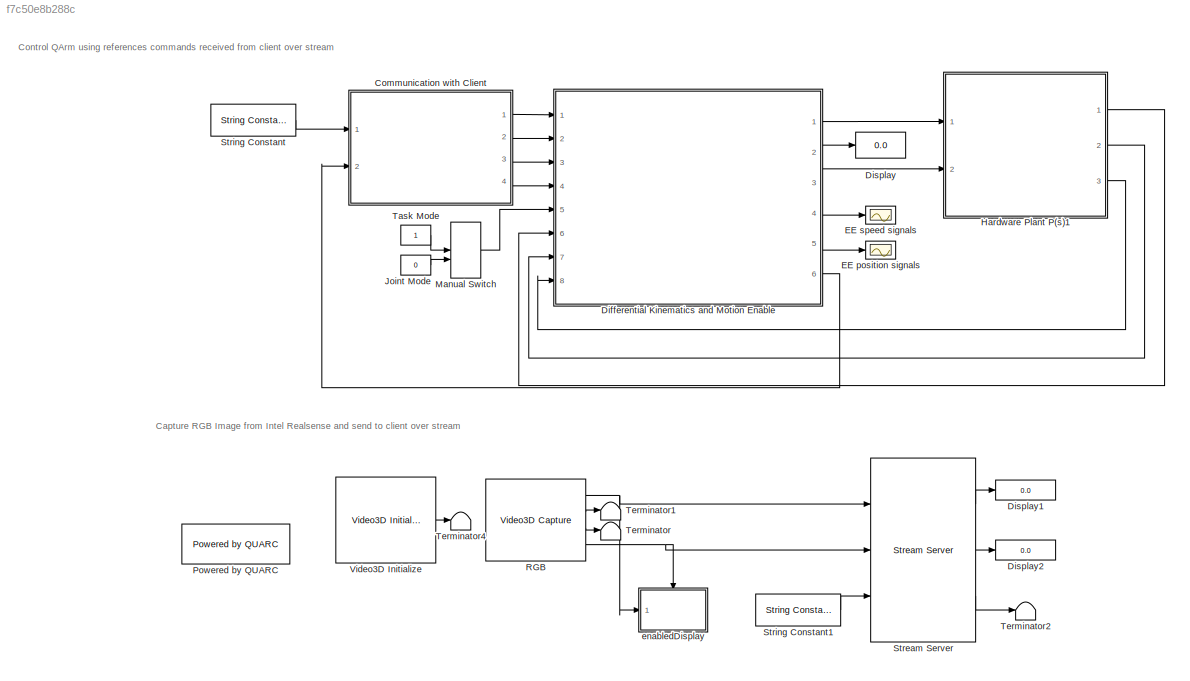
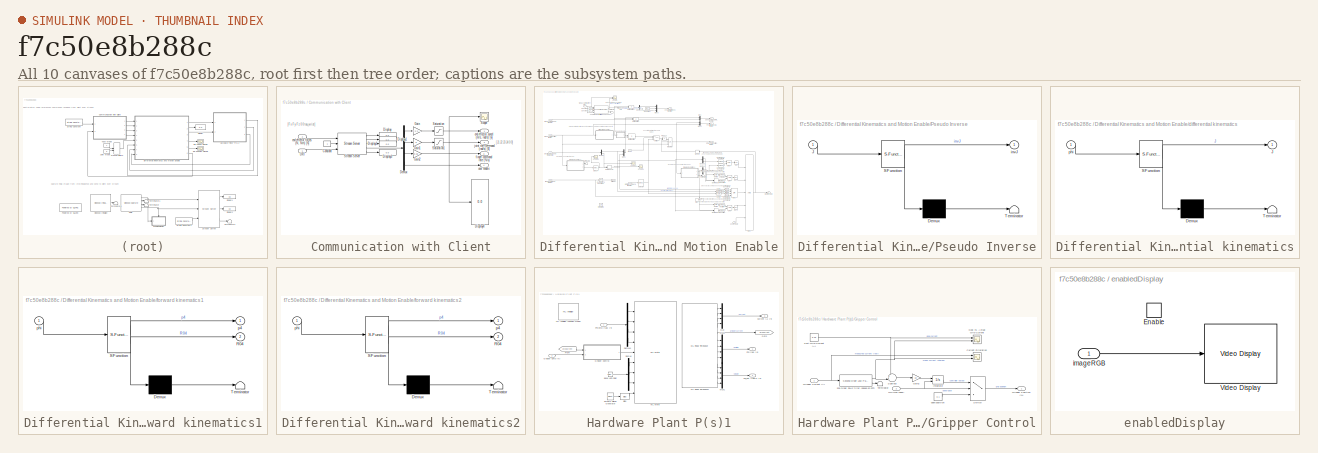
[diagram: thumbnail index - all 10 canvases of the model, root first then tree order]
MODEL slx_f7c50e8b288c
KIND model
CONFIG AbsTol = auto
CONFIG EnableMultiTasking = on
CONFIG FixedStep = 1/500
CONFIG MaxStep = auto
CONFIG MinStep = auto
CONFIG RelTol = 1e-3
CONFIG SampleTimeConstraint = Unconstrained
CONFIG Solver = ode4
CONFIG SolverName = ode4
CONFIG StartTime = 0.0
CONFIG StopTime = inf
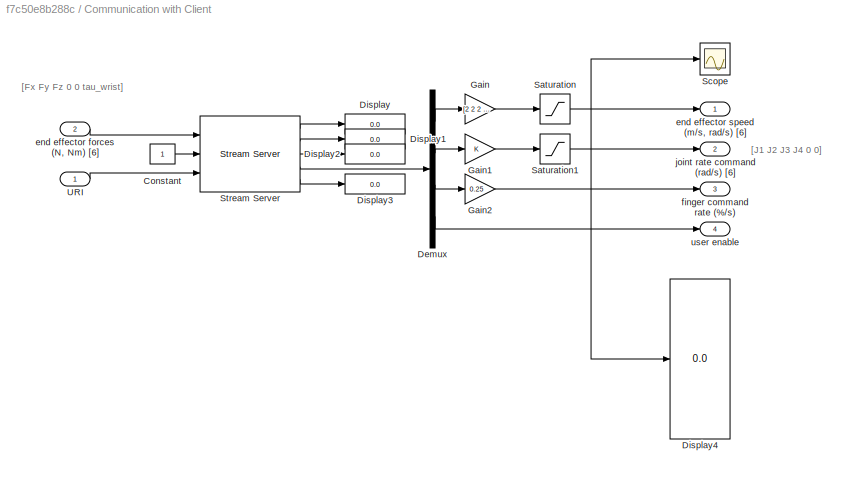
BLOCK [SubSystem] Communication with Client
  Ports = [2, 4]
  RequestExecContextInheritance = off
BLOCK [Constant] Communication with Client/Constant
BLOCK [Demux] Communication with Client/Demux
  Outputs = [6 6 1 1]
  Ports = [1, 4]
BLOCK [Display] Communication with Client/Display
  Decimation = 1
  Ports = [1]
BLOCK [Display] Communication with Client/Display1
  Decimation = 1
  Ports = [1]
BLOCK [Display] Communication with Client/Display2
  Decimation = 1
  Ports = [1]
BLOCK [Display] Communication with Client/Display3
  Decimation = 1
  Ports = [1]
BLOCK [Display] Communication with Client/Display4
  Decimation = 1
  Ports = [1]
BLOCK [Gain] Communication with Client/Gain
  Gain = [2 2 2 1 1 0.5]
BLOCK [Gain] Communication with Client/Gain1
BLOCK [Gain] Communication with Client/Gain2
  Gain = 0.25
BLOCK [Saturate] Communication with Client/Saturation
  LowerLimit = -[0.5 0.5 0.5 1 1 1]
  UpperLimit = [0.5 0.5 0.5 1 1 1]
BLOCK [Saturate] Communication with Client/Saturation1
  LowerLimit = -pi*[1 1 1 1 1 1]/6
  UpperLimit = pi*[1 1 1 1 1 1]/6
BLOCK [Scope] Communication with Client/Scope
  Floating = off
  NumInputPorts = 1
  Ports = [1]
  ScopeSpecificationString = Simulink.scopes.TimeScopeBlockCfg('CurrentConfiguration', extmgr.ConfigurationSet(extmgr.Configuration('Core','General UI',true),extmgr.Configuration('Core','Source UI',true),extmgr.Configuration('Sources','WiredSimulink',true,'DataLoggingVariableName','ScopeData1'),extmgr.Configuration('Visuals','Time Domain',true),extmgr.Configuration('Tools','Plot Navigation',true),extmgr.Configuration('Tools',...<+40ch>
BLOCK [Reference] Communication with Client/Stream Server  REF=quarc_library/Communications/Basic/Stream Server
  Ports = [3, 5]
  SourceBlock = quarc_library/Communications/Basic/Stream Server
  SourceProductName = QUARC Targets
  SourceType = Stream Server
BLOCK [Inport] Communication with Client/URI
BLOCK [Inport] Communication with Client/end effector forces (N, Nm) [6]
  Port = 2
BLOCK [Outport] Communication with Client/end effector speed (m//s, rad//s) [6]
BLOCK [Outport] Communication with Client/finger command rate (%//s)
  Port = 3
BLOCK [Outport] Communication with Client/joint rate command (rad//s) [6]
  Port = 2
BLOCK [Outport] Communication with Client/user enable
  Port = 4
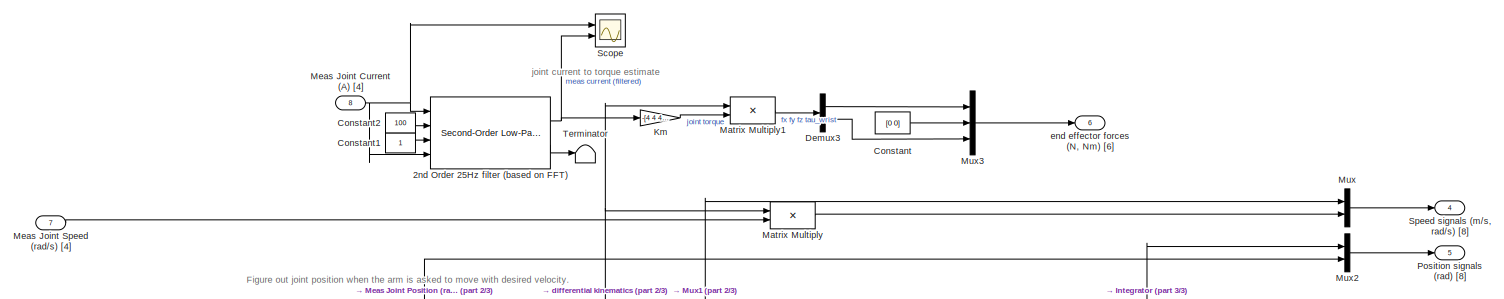
[diagram: Differential Kinematics and Motion Enable - part 1/3, full width, top band]
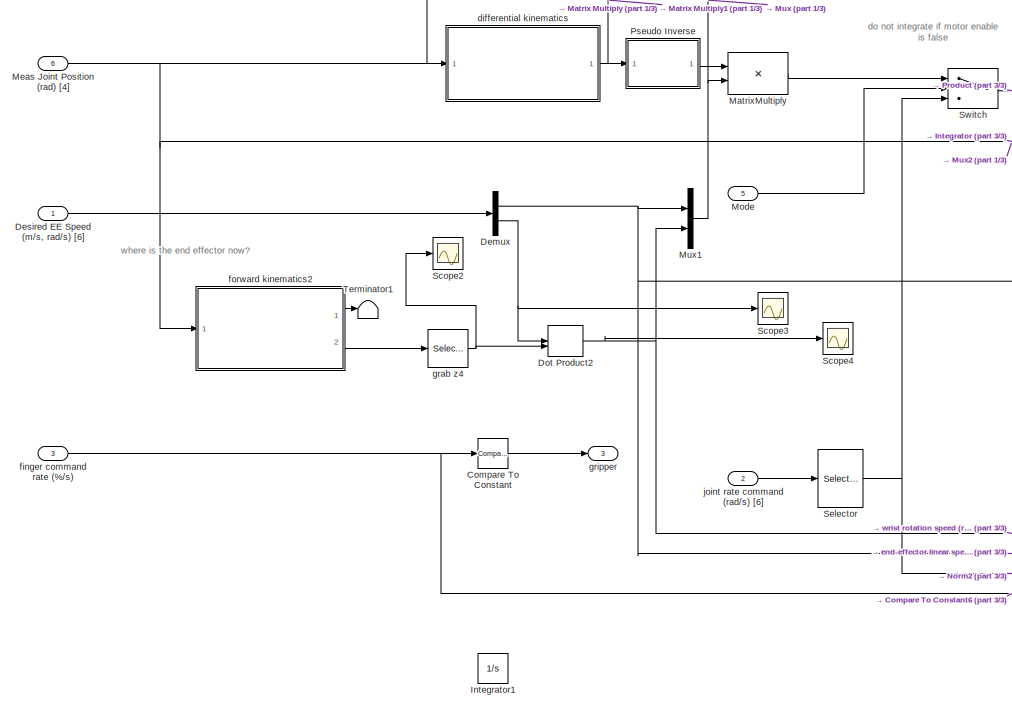
[diagram: Differential Kinematics and Motion Enable - part 2/3, middle left region]
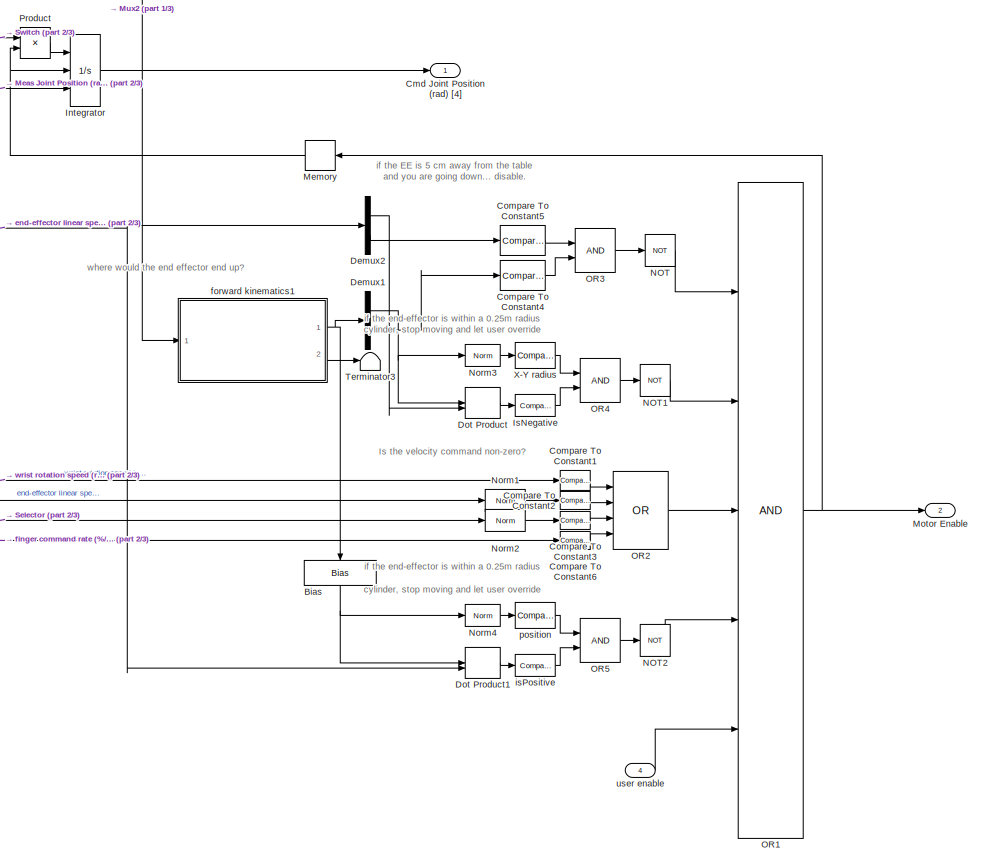
[diagram: Differential Kinematics and Motion Enable - part 3/3, middle right region]
BLOCK [SubSystem] Differential Kinematics and Motion Enable
  Ports = [8, 6]
  RequestExecContextInheritance = off
BLOCK [Reference] Differential Kinematics and Motion Enable/2nd Order 25Hz filter (based on FFT)  REF=quarc_library/Continuous/Second-Order
Low-Pass Filter
  Ports = [4, 2]
  SourceBlock = quarc_library/Continuous/Second-Order\nLow-Pass Filter
  SourceProductName = QUARC Targets
  SourceType = Second-Order Low-Pass Filter
BLOCK [Bias] Differential Kinematics and Motion Enable/Bias
  Bias = [0 0 -0.14]
  SaturateOnIntegerOverflow = off
BLOCK [Outport] Differential Kinematics and Motion Enable/Cmd Joint Position (rad) [4]
  VectorParamsAs1DForOutWhenUnconnected = off
BLOCK [Reference] Differential Kinematics and Motion Enable/Compare To Constant  REF=simulink/Logic and Bit
Operations/Compare
To Constant
  Ports = [1, 1]
  SourceBlock = simulink/Logic and Bit\nOperations/Compare\nTo Constant
  SourceProductBaseCode = SL
  SourceType = Compare To Constant
BLOCK [Reference] Differential Kinematics and Motion Enable/Compare To Constant1  REF=simulink/Logic and Bit
Operations/Compare
To Constant
  Ports = [1, 1]
  SourceBlock = simulink/Logic and Bit\nOperations/Compare\nTo Constant
  SourceProductBaseCode = SL
  SourceType = Compare To Constant
BLOCK [Reference] Differential Kinematics and Motion Enable/Compare To Constant2  REF=simulink/Logic and Bit
Operations/Compare
To Constant
  Ports = [1, 1]
  SourceBlock = simulink/Logic and Bit\nOperations/Compare\nTo Constant
  SourceProductBaseCode = SL
  SourceType = Compare To Constant
BLOCK [Reference] Differential Kinematics and Motion Enable/Compare To Constant3  REF=simulink/Logic and Bit
Operations/Compare
To Constant
  Ports = [1, 1]
  SourceBlock = simulink/Logic and Bit\nOperations/Compare\nTo Constant
  SourceProductBaseCode = SL
  SourceType = Compare To Constant
BLOCK [Reference] Differential Kinematics and Motion Enable/Compare To Constant4  REF=simulink/Logic and Bit
Operations/Compare
To Constant
  Ports = [1, 1]
  SourceBlock = simulink/Logic and Bit\nOperations/Compare\nTo Constant
  SourceProductBaseCode = SL
  SourceType = Compare To Constant
BLOCK [Reference] Differential Kinematics and Motion Enable/Compare To Constant5  REF=simulink/Logic and Bit
Operations/Compare
To Constant
  Ports = [1, 1]
  SourceBlock = simulink/Logic and Bit\nOperations/Compare\nTo Constant
  SourceProductBaseCode = SL
  SourceType = Compare To Constant
BLOCK [Reference] Differential Kinematics and Motion Enable/Compare To Constant6  REF=simulink/Logic and Bit
Operations/Compare
To Constant
  Ports = [1, 1]
  SourceBlock = simulink/Logic and Bit\nOperations/Compare\nTo Constant
  SourceProductBaseCode = SL
  SourceType = Compare To Constant
BLOCK [Constant] Differential Kinematics and Motion Enable/Constant
  Value = [0 0]
BLOCK [Constant] Differential Kinematics and Motion Enable/Constant1
BLOCK [Constant] Differential Kinematics and Motion Enable/Constant2
  Value = 100
BLOCK [Demux] Differential Kinematics and Motion Enable/Demux
  Outputs = [3 3]
  Ports = [1, 2]
BLOCK [Demux] Differential Kinematics and Motion Enable/Demux1
  Outputs = [2 1]
  Ports = [1, 2]
BLOCK [Demux] Differential Kinematics and Motion Enable/Demux2
  Outputs = [2 1]
  Ports = [1, 2]
BLOCK [Demux] Differential Kinematics and Motion Enable/Demux3
  Outputs = [3 1]
  Ports = [1, 2]
BLOCK [Inport] Differential Kinematics and Motion Enable/Desired EE Speed (m//s, rad//s) [6]
  PortDimensions = 6
BLOCK [DotProduct] Differential Kinematics and Motion Enable/Dot Product
  OutDataTypeStr = Inherit: Inherit via internal rule
BLOCK [DotProduct] Differential Kinematics and Motion Enable/Dot Product1
  OutDataTypeStr = Inherit: Inherit via internal rule
BLOCK [DotProduct] Differential Kinematics and Motion Enable/Dot Product2
  OutDataTypeStr = Inherit: Inherit via internal rule
BLOCK [Integrator] Differential Kinematics and Motion Enable/Integrator
  ExternalReset = falling
  InitialConditionSource = external
  Ports = [3, 1]
BLOCK [Integrator] Differential Kinematics and Motion Enable/Integrator1
  Commented = on
  InitialCondition = 0.1
  LimitOutput = on
  LowerSaturationLimit = 0.1
  Ports = [1, 1]
  UpperSaturationLimit = 0.9
BLOCK [Reference] Differential Kinematics and Motion Enable/IsNegative  REF=simulink/Logic and Bit
Operations/Compare
To Zero
  Ports = [1, 1]
  SourceBlock = simulink/Logic and Bit\nOperations/Compare\nTo Zero
  SourceProductBaseCode = SL
  SourceType = Compare To Zero
BLOCK [Gain] Differential Kinematics and Motion Enable/Km
  Gain = -[4 4 4 4]
BLOCK [Product] Differential Kinematics and Motion Enable/Matrix Multiply
  Multiplication = Matrix(*)
  Ports = [2, 1]
BLOCK [Product] Differential Kinematics and Motion Enable/Matrix Multiply1
  Multiplication = Matrix(*)
  Ports = [2, 1]
BLOCK [Product] Differential Kinematics and Motion Enable/MatrixMultiply
  Multiplication = Matrix(*)
  Ports = [2, 1]
BLOCK [Inport] Differential Kinematics and Motion Enable/Meas Joint Current (A) [4]
  Port = 8
BLOCK [Inport] Differential Kinematics and Motion Enable/Meas Joint Position (rad) [4]
  Port = 6
  PortDimensions = 4
BLOCK [Inport] Differential Kinematics and Motion Enable/Meas Joint Speed (rad//s) [4]
  Port = 7
BLOCK [Memory] Differential Kinematics and Motion Enable/Memory
BLOCK [Inport] Differential Kinematics and Motion Enable/Mode
  Port = 5
BLOCK [Outport] Differential Kinematics and Motion Enable/Motor Enable
  Port = 2
  VectorParamsAs1DForOutWhenUnconnected = off
BLOCK [Mux] Differential Kinematics and Motion Enable/Mux
  DisplayOption = bar
  Inputs = 2
  Ports = [2, 1]
BLOCK [Mux] Differential Kinematics and Motion Enable/Mux1
  DisplayOption = bar
  Inputs = 2
  Ports = [2, 1]
BLOCK [Mux] Differential Kinematics and Motion Enable/Mux2
  DisplayOption = bar
  Inputs = 2
  Ports = [2, 1]
BLOCK [Mux] Differential Kinematics and Motion Enable/Mux3
  DisplayOption = bar
  Inputs = 3
  Ports = [3, 1]
BLOCK [Logic] Differential Kinematics and Motion Enable/NOT
  AllPortsSameDT = off
  IconShape = distinctive
  Operator = NOT
  OutDataTypeStr = boolean
  Ports = [1, 1]
BLOCK [Logic] Differential Kinematics and Motion Enable/NOT1
  AllPortsSameDT = off
  IconShape = distinctive
  Operator = NOT
  OutDataTypeStr = boolean
  Ports = [1, 1]
BLOCK [Logic] Differential Kinematics and Motion Enable/NOT2
  AllPortsSameDT = off
  IconShape = distinctive
  Operator = NOT
  OutDataTypeStr = boolean
  Ports = [1, 1]
BLOCK [Reference] Differential Kinematics and Motion Enable/Norm1  REF=quarc_library/Math Operations/Vectors/Norm
  Ports = [1, 1]
  SourceBlock = quarc_library/Math Operations/Vectors/Norm
  SourceProductName = QUARC Targets
  SourceType = Norm
BLOCK [Reference] Differential Kinematics and Motion Enable/Norm2  REF=quarc_library/Math Operations/Vectors/Norm
  Ports = [1, 1]
  SourceBlock = quarc_library/Math Operations/Vectors/Norm
  SourceProductName = QUARC Targets
  SourceType = Norm
BLOCK [Reference] Differential Kinematics and Motion Enable/Norm3  REF=quarc_library/Math Operations/Vectors/Norm
  Ports = [1, 1]
  SourceBlock = quarc_library/Math Operations/Vectors/Norm
  SourceProductName = QUARC Targets
  SourceType = Norm
BLOCK [Reference] Differential Kinematics and Motion Enable/Norm4  REF=quarc_library/Math Operations/Vectors/Norm
  Ports = [1, 1]
  SourceBlock = quarc_library/Math Operations/Vectors/Norm
  SourceProductName = QUARC Targets
  SourceType = Norm
BLOCK [Logic] Differential Kinematics and Motion Enable/OR1
  AllPortsSameDT = off
  IconShape = distinctive
  Inputs = 5
  OutDataTypeStr = boolean
  Ports = [5, 1]
BLOCK [Logic] Differential Kinematics and Motion Enable/OR2
  AllPortsSameDT = off
  IconShape = distinctive
  Inputs = 4
  Operator = OR
  OutDataTypeStr = boolean
  Ports = [4, 1]
BLOCK [Logic] Differential Kinematics and Motion Enable/OR3
  AllPortsSameDT = off
  IconShape = distinctive
  OutDataTypeStr = boolean
  Ports = [2, 1]
BLOCK [Logic] Differential Kinematics and Motion Enable/OR4
  AllPortsSameDT = off
  IconShape = distinctive
  OutDataTypeStr = boolean
  Ports = [2, 1]
BLOCK [Logic] Differential Kinematics and Motion Enable/OR5
  AllPortsSameDT = off
  IconShape = distinctive
  OutDataTypeStr = boolean
  Ports = [2, 1]
BLOCK [Outport] Differential Kinematics and Motion Enable/Position signals (rad) [8]
  Port = 5
BLOCK [Product] Differential Kinematics and Motion Enable/Product
  Ports = [2, 1]
BLOCK [SubSystem] Differential Kinematics and Motion Enable/Pseudo Inverse
  ErrorFcn = Stateflow.Translate.translate
  PermitHierarchicalResolution = ExplicitOnly
  Ports = [1, 1]
  RequestExecContextInheritance = off
  SFBlockType = MATLAB Function
  TreatAsAtomicUnit = on
BLOCK [Demux] Differential Kinematics and Motion Enable/Pseudo Inverse/ Demux 
  Outputs = 1
  Ports = [1, 1]
BLOCK [S-Function] Differential Kinematics and Motion Enable/Pseudo Inverse/ SFunction 
  EnableBusSupport = on
  FunctionName = sf_sfun
  PortCounts = [1 2]
  Ports = [1, 2]
  SFcnIsStateOwnerBlock = off
  SFunctionDeploymentMode = off
  Tag = Stateflow S-Function QArm_TeleopServer 4
BLOCK [Terminator] Differential Kinematics and Motion Enable/Pseudo Inverse/ Terminator 
BLOCK [Inport] Differential Kinematics and Motion Enable/Pseudo Inverse/J
BLOCK [Outport] Differential Kinematics and Motion Enable/Pseudo Inverse/invJ
BLOCK [Scope] Differential Kinematics and Motion Enable/Scope
  Floating = off
  NumInputPorts = 2
  Ports = [2]
  ScopeSpecificationString = Simulink.scopes.TimeScopeBlockCfg('CurrentConfiguration', extmgr.ConfigurationSet(extmgr.Configuration('Core','General UI',true),extmgr.Configuration('Core','Source UI',true),extmgr.Configuration('Sources','WiredSimulink',true,'DataLoggingVariableName','ScopeData3'),extmgr.Configuration('Visuals','Time Domain',true,'SerializedDisplays',{struct('MinYLimReal','-0.875','MaxYLimReal','0.37462','YLabel...<+1607ch>
BLOCK [Scope] Differential Kinematics and Motion Enable/Scope2
  Floating = off
  NumInputPorts = 1
  Ports = [1]
  ScopeSpecificationString = Simulink.scopes.TimeScopeBlockCfg('CurrentConfiguration', extmgr.ConfigurationSet(extmgr.Configuration('Core','General UI',true),extmgr.Configuration('Core','Source UI',true),extmgr.Configuration('Sources','WiredSimulink',true,'DataLoggingVariableName','ScopeData1'),extmgr.Configuration('Visuals','Time Domain',true,'SerializedDisplays',{struct('MinYLimReal','-0.10112','MaxYLimReal','1.11549','YLab...<+1756ch>
BLOCK [Scope] Differential Kinematics and Motion Enable/Scope3
  Floating = off
  NumInputPorts = 1
  Ports = [1]
  ScopeSpecificationString = Simulink.scopes.TimeScopeBlockCfg('CurrentConfiguration', extmgr.ConfigurationSet(extmgr.Configuration('Core','General UI',true),extmgr.Configuration('Core','Source UI',true),extmgr.Configuration('Sources','WiredSimulink',true,'DataLoggingVariableName','ScopeData2'),extmgr.Configuration('Visuals','Time Domain',true,'SerializedDisplays',{struct('MinYLimReal','-2','MaxYLimReal','2','YLabelReal','','...<+1729ch>
BLOCK [Scope] Differential Kinematics and Motion Enable/Scope4
  Floating = off
  NumInputPorts = 1
  Ports = [1]
  ScopeSpecificationString = Simulink.scopes.TimeScopeBlockCfg('CurrentConfiguration', extmgr.ConfigurationSet(extmgr.Configuration('Core','General UI',true),extmgr.Configuration('Core','Source UI',true),extmgr.Configuration('Sources','WiredSimulink',true,'DataLoggingVariableName','ScopeData3'),extmgr.Configuration('Visuals','Time Domain',true,'SerializedDisplays',{struct('MinYLimReal','-1.00000','MaxYLimReal','1.00000','YLab...<+1417ch>
BLOCK [Selector] Differential Kinematics and Motion Enable/Selector
  IndexOptions = Index vector (dialog)
  Indices = [1:4]
  InputPortWidth = 6
  OutputSizes = 1
  Ports = [1, 1]
BLOCK [Outport] Differential Kinematics and Motion Enable/Speed signals (m//s, rad//s) [8]
  Port = 4
BLOCK [Switch] Differential Kinematics and Motion Enable/Switch
  Criteria = u2 > Threshold
  InputSameDT = off
  SaturateOnIntegerOverflow = off
BLOCK [Terminator] Differential Kinematics and Motion Enable/Terminator
BLOCK [Terminator] Differential Kinematics and Motion Enable/Terminator1
BLOCK [Terminator] Differential Kinematics and Motion Enable/Terminator3
BLOCK [Reference] Differential Kinematics and Motion Enable/X-Y radius  REF=simulink/Logic and Bit
Operations/Compare
To Constant
  Ports = [1, 1]
  SourceBlock = simulink/Logic and Bit\nOperations/Compare\nTo Constant
  SourceProductBaseCode = SL
  SourceType = Compare To Constant
BLOCK [SubSystem] Differential Kinematics and Motion Enable/differential kinematics
  ErrorFcn = Stateflow.Translate.translate
  PermitHierarchicalResolution = ExplicitOnly
  Ports = [1, 1]
  RequestExecContextInheritance = off
  SFBlockType = MATLAB Function
  TreatAsAtomicUnit = on
BLOCK [Demux] Differential Kinematics and Motion Enable/differential kinematics/ Demux 
  Outputs = 1
  Ports = [1, 1]
BLOCK [S-Function] Differential Kinematics and Motion Enable/differential kinematics/ SFunction 
  EnableBusSupport = on
  FunctionName = sf_sfun
  PortCounts = [1 2]
  Ports = [1, 2]
  SFcnIsStateOwnerBlock = off
  SFunctionDeploymentMode = off
  Tag = Stateflow S-Function QArm_TeleopServer 2
BLOCK [Terminator] Differential Kinematics and Motion Enable/differential kinematics/ Terminator 
BLOCK [Outport] Differential Kinematics and Motion Enable/differential kinematics/J
  VectorParamsAs1DForOutWhenUnconnected = off
BLOCK [Inport] Differential Kinematics and Motion Enable/differential kinematics/phi
BLOCK [Outport] Differential Kinematics and Motion Enable/end effector forces (N, Nm) [6]
  Port = 6
BLOCK [Inport] Differential Kinematics and Motion Enable/finger command rate (%//s)
  Port = 3
BLOCK [SubSystem] Differential Kinematics and Motion Enable/forward kinematics1
  ErrorFcn = Stateflow.Translate.translate
  PermitHierarchicalResolution = ExplicitOnly
  Ports = [1, 2]
  RequestExecContextInheritance = off
  SFBlockType = MATLAB Function
  TreatAsAtomicUnit = on
BLOCK [Demux] Differential Kinematics and Motion Enable/forward kinematics1/ Demux 
  Outputs = 1
  Ports = [1, 1]
BLOCK [S-Function] Differential Kinematics and Motion Enable/forward kinematics1/ SFunction 
  EnableBusSupport = on
  FunctionName = sf_sfun
  PortCounts = [1 3]
  Ports = [1, 3]
  SFcnIsStateOwnerBlock = off
  SFunctionDeploymentMode = off
  Tag = Stateflow S-Function QArm_TeleopServer 3
BLOCK [Terminator] Differential Kinematics and Motion Enable/forward kinematics1/ Terminator 
BLOCK [Outport] Differential Kinematics and Motion Enable/forward kinematics1/R04
  Port = 2
  VectorParamsAs1DForOutWhenUnconnected = off
BLOCK [Outport] Differential Kinematics and Motion Enable/forward kinematics1/p4
  VectorParamsAs1DForOutWhenUnconnected = off
BLOCK [Inport] Differential Kinematics and Motion Enable/forward kinematics1/phi
BLOCK [SubSystem] Differential Kinematics and Motion Enable/forward kinematics2
  ErrorFcn = Stateflow.Translate.translate
  PermitHierarchicalResolution = ExplicitOnly
  Ports = [1, 2]
  RequestExecContextInheritance = off
  SFBlockType = MATLAB Function
  TreatAsAtomicUnit = on
BLOCK [Demux] Differential Kinematics and Motion Enable/forward kinematics2/ Demux 
  Outputs = 1
  Ports = [1, 1]
BLOCK [S-Function] Differential Kinematics and Motion Enable/forward kinematics2/ SFunction 
  EnableBusSupport = on
  FunctionName = sf_sfun
  PortCounts = [1 3]
  Ports = [1, 3]
  SFcnIsStateOwnerBlock = off
  SFunctionDeploymentMode = off
  Tag = Stateflow S-Function QArm_TeleopServer 1
BLOCK [Terminator] Differential Kinematics and Motion Enable/forward kinematics2/ Terminator 
BLOCK [Outport] Differential Kinematics and Motion Enable/forward kinematics2/R04
  Port = 2
  VectorParamsAs1DForOutWhenUnconnected = off
BLOCK [Outport] Differential Kinematics and Motion Enable/forward kinematics2/p4
  VectorParamsAs1DForOutWhenUnconnected = off
BLOCK [Inport] Differential Kinematics and Motion Enable/forward kinematics2/phi
BLOCK [Selector] Differential Kinematics and Motion Enable/grab z4
  IndexOptions = Index vector (dialog),Index vector (dialog)
  Indices = [1:3],3
  InputPortWidth = 3
  NumberOfDimensions = 2
  OutputSizes = 1,1
  Ports = [1, 1]
BLOCK [Outport] Differential Kinematics and Motion Enable/gripper
  Port = 3
BLOCK [Reference] Differential Kinematics and Motion Enable/isPositive  REF=simulink/Logic and Bit
Operations/Compare
To Zero
  Ports = [1, 1]
  SourceBlock = simulink/Logic and Bit\nOperations/Compare\nTo Zero
  SourceProductBaseCode = SL
  SourceType = Compare To Zero
BLOCK [Inport] Differential Kinematics and Motion Enable/joint rate command (rad//s) [6]
  Port = 2
BLOCK [Reference] Differential Kinematics and Motion Enable/position  REF=simulink/Logic and Bit
Operations/Compare
To Constant
  Ports = [1, 1]
  SourceBlock = simulink/Logic and Bit\nOperations/Compare\nTo Constant
  SourceProductBaseCode = SL
  SourceType = Compare To Constant
BLOCK [Inport] Differential Kinematics and Motion Enable/user enable
  Port = 4
BLOCK [Display] Display
  Decimation = 1
  Ports = [1]
BLOCK [Display] Display1
  Decimation = 1
  Ports = [1]
BLOCK [Display] Display2
  Decimation = 1
  Ports = [1]
BLOCK [Scope] EE position signals
  Floating = off
  NumInputPorts = 1
  Ports = [1]
  ScopeSpecificationString = Simulink.scopes.TimeScopeBlockCfg('CurrentConfiguration', extmgr.ConfigurationSet(extmgr.Configuration('Core','General UI',true),extmgr.Configuration('Core','Source UI',true),extmgr.Configuration('Sources','WiredSimulink',true,'DataLoggingVariableName','ScopeData4'),extmgr.Configuration('Visuals','Time Domain',true,'SerializedDisplays',{struct('MinYLimReal','-0.46107','MaxYLimReal','0.65901','YLab...<+2542ch>
BLOCK [Scope] EE speed signals
  Floating = off
  NumInputPorts = 1
  Ports = [1]
  ScopeSpecificationString = Simulink.scopes.TimeScopeBlockCfg('CurrentConfiguration', extmgr.ConfigurationSet(extmgr.Configuration('Core','General UI',true),extmgr.Configuration('Core','Source UI',true),extmgr.Configuration('Sources','WiredSimulink',true,'DataLoggingVariableName','ScopeData1'),extmgr.Configuration('Visuals','Time Domain',true,'SerializedDisplays',{struct('MinYLimReal','-0.125','MaxYLimReal','0.125','YLabelRe...<+2536ch>
BLOCK [SubSystem] Hardware Plant P(s)1
  Ports = [2, 3]
  RequestExecContextInheritance = off
BLOCK [Reference] Hardware Plant P(s)1/Base LED Color  REF=quarc_library/Sources/Signals/Color Constant
  Ports = [0, 1]
  SourceBlock = quarc_library/Sources/Signals/Color Constant
  SourceProductName = QUARC Targets
  SourceType = Color Constant
BLOCK [Bias] Hardware Plant P(s)1/Bias
  Bias = 0.5
  SaturateOnIntegerOverflow = off
BLOCK [Outport] Hardware Plant P(s)1/Current (A) [4]
  Port = 3
  VectorParamsAs1DForOutWhenUnconnected = off
BLOCK [Demux] Hardware Plant P(s)1/Demux
  Outputs = 3
  Ports = [1, 3]
BLOCK [Demux] Hardware Plant P(s)1/Demux1
  Ports = [1, 4]
BLOCK [From] Hardware Plant P(s)1/From
  GotoTag = grpCurrent
BLOCK [Goto] Hardware Plant P(s)1/Goto
  GotoTag = grpCurrent
BLOCK [Inport] Hardware Plant P(s)1/Gripper Cmd (%)
  Port = 2
BLOCK [SubSystem] Hardware Plant P(s)1/Gripper Control
  Ports = [2, 1]
  RequestExecContextInheritance = off
BLOCK [Reference] Hardware Plant P(s)1/Gripper Control/2nd Order 25Hz filter (based on FFT)  REF=quarc_library/Continuous/Second-Order
Low-Pass Filter
  Ports = [1, 2]
  SourceBlock = quarc_library/Continuous/Second-Order\nLow-Pass Filter
  SourceProductName = QUARC Targets
  SourceType = Second-Order Low-Pass Filter
BLOCK [Scope] Hardware Plant P(s)1/Gripper Control/Current Filteration
  Floating = off
  NumInputPorts = 2
  Ports = [2]
  ScopeSpecificationString = Simulink.scopes.TimeScopeBlockCfg('CurrentConfiguration', extmgr.ConfigurationSet(extmgr.Configuration('Core','General UI',true),extmgr.Configuration('Core','Source UI',true),extmgr.Configuration('Sources','WiredSimulink',true,'DataLoggingVariableName','ScopeData5'),extmgr.Configuration('Visuals','Time Domain',true,'SerializedDisplays',{struct('MinYLimReal','-0.01447','MaxYLimReal','0.62651','YLab...<+1429ch>
BLOCK [Gain] Hardware Plant P(s)1/Gripper Control/Gain2
  Gain = 10
BLOCK [Scope] Hardware Plant P(s)1/Gripper Control/Goal vs. Actual Grip Current
  Floating = off
  NumInputPorts = 2
  Ports = [2]
  ScopeSpecificationString = Simulink.scopes.TimeScopeBlockCfg('CurrentConfiguration', extmgr.ConfigurationSet(extmgr.Configuration('Core','General UI',true),extmgr.Configuration('Core','Source UI',true),extmgr.Configuration('Sources','WiredSimulink',true,'DataLoggingVariableName','ScopeData4'),extmgr.Configuration('Visuals','Time Domain',true,'SerializedDisplays',{struct('MinYLimReal','0.00229','MaxYLimReal','0.27702','YLabe...<+1426ch>
BLOCK [Inport] Hardware Plant P(s)1/Gripper Control/Gripper Current (A)
BLOCK [Outport] Hardware Plant P(s)1/Gripper Control/Gripper Position (%)
  VectorParamsAs1DForOutWhenUnconnected = off
BLOCK [Integrator] Hardware Plant P(s)1/Gripper Control/Integrator
  ExternalReset = either
  InitialCondition = 0.1
  LimitOutput = on
  LowerSaturationLimit = 0.1
  Ports = [2, 1]
  UpperSaturationLimit = 0.9
BLOCK [Inport] Hardware Plant P(s)1/Gripper Control/ON//OFF (bool)
  Port = 2
BLOCK [Constant] Hardware Plant P(s)1/Gripper Control/Soft-Grip Current (A)
  Value = 0.25
BLOCK [Sum] Hardware Plant P(s)1/Gripper Control/Subtract
  Inputs = +-|
  Ports = [2, 1]
BLOCK [Switch] Hardware Plant P(s)1/Gripper Control/Switch
  Criteria = u2 > Threshold
  InputSameDT = off
  SaturateOnIntegerOverflow = off
BLOCK [Terminator] Hardware Plant P(s)1/Gripper Control/Terminator
BLOCK [Constant] Hardware Plant P(s)1/Gripper Control/open position
  Value = 0.1
BLOCK [Reference] Hardware Plant P(s)1/HIL Initialize (Position Mode)  REF=quarc_library/Data Acquisition/Generic/Configuration/HIL Initialize
  AttributesFormatString = %<object_name> (%<board_type>-%<board_number>)
  Ports = []
  SourceBlock = quarc_library/Data Acquisition/Generic/Configuration/HIL Initialize
  SourceProductName = QUARC Targets
  SourceType = HIL Initialize
  UserDataPersistent = on
BLOCK [Reference] Hardware Plant P(s)1/HIL Read Timebase1  REF=quarc_library/Data Acquisition/Generic/Timebases/HIL Read
Timebase
  AttributesFormatString = (%<object_name>)
  Ports = [0, 13]
  SourceBlock = quarc_library/Data Acquisition/Generic/Timebases/HIL Read\nTimebase
  SourceProductName = QUARC Targets
  SourceType = HIL Read Timebase
  UserDataPersistent = on
BLOCK [Reference] Hardware Plant P(s)1/HIL Write  REF=quarc_library/Data Acquisition/Generic/Immediate I//O/HIL Write
  AttributesFormatString = (%<object_name>)
  Ports = [9]
  SourceBlock = quarc_library/Data Acquisition/Generic/Immediate I//O/HIL Write
  SourceProductName = QUARC Targets
  SourceType = HIL Write
  UserDataPersistent = on
BLOCK [Mux] Hardware Plant P(s)1/Mux
  DisplayOption = bar
  Ports = [4, 1]
BLOCK [Mux] Hardware Plant P(s)1/Mux1
  DisplayOption = bar
  Ports = [4, 1]
BLOCK [Mux] Hardware Plant P(s)1/Mux2
  DisplayOption = bar
  Ports = [4, 1]
BLOCK [Outport] Hardware Plant P(s)1/Phi (rad) [4]
  VectorParamsAs1DForOutWhenUnconnected = off
BLOCK [Inport] Hardware Plant P(s)1/Phi Cmd (rad) [4]
BLOCK [Outport] Hardware Plant P(s)1/Phi_dot (rad//s) [4]
  Port = 2
  VectorParamsAs1DForOutWhenUnconnected = off
BLOCK [Reference] Hardware Plant P(s)1/Smooth Signal Generator  REF=quarc_library/Sources/Signals/Smooth Signal
Generator
  Ports = [0, 1]
  SourceBlock = quarc_library/Sources/Signals/Smooth Signal\nGenerator
  SourceProductName = QUARC Targets
  SourceType = Smooth Signal Generator
BLOCK [Constant] Joint Mode
  Value = 0
BLOCK [ManualSwitch] Manual Switch
BLOCK [Reference] Powered by QUARC  REF=quarc_library/Logos/Powered by QUARC
  Ports = []
  SourceBlock = quarc_library/Logos/Powered by QUARC
  SourceProductName = QUARC Targets
  SourceType = Powered by QUARC
BLOCK [Reference] RGB  REF=quarc_library/Multimedia/Video3D Capture
  Ports = [0, 4]
  SourceBlock = quarc_library/Multimedia/Video3D Capture
  SourceProductName = QUARC Targets
  SourceType = Video3D Capture
  UserDataPersistent = on
BLOCK [Reference] Stream Server  REF=quarc_library/Communications/Basic/Stream Server
  Ports = [3, 3]
  SourceBlock = quarc_library/Communications/Basic/Stream Server
  SourceProductName = QUARC Targets
  SourceType = Stream Server
BLOCK [Reference] String Constant  REF=quarc_library/Strings/String Constant
  AttributesFormatString = "tcpip://localhost:18018"
  Ports = [0, 1]
  SourceBlock = quarc_library/Strings/String Constant
  SourceProductName = QUARC Targets
  SourceType = String Constant
BLOCK [Reference] String Constant1  REF=quarc_library/Strings/String Constant
  AttributesFormatString = "tcpip://localhost:18025"
  Ports = [0, 1]
  SourceBlock = quarc_library/Strings/String Constant
  SourceProductName = QUARC Targets
  SourceType = String Constant
BLOCK [Constant] Task Mode
BLOCK [Terminator] Terminator
BLOCK [Terminator] Terminator1
BLOCK [Terminator] Terminator2
BLOCK [Terminator] Terminator4
BLOCK [Reference] Video3D Initialize  REF=quarc_library/Multimedia/Video3D Initialize
  Ports = [0, 1]
  SourceBlock = quarc_library/Multimedia/Video3D Initialize
  SourceProductName = QUARC Targets
  SourceType = Video3D Initialize
BLOCK [SubSystem] enabledDisplay
  Ports = [1, 0, 1]
  RequestExecContextInheritance = off
BLOCK [EnablePort] enabledDisplay/Enable
  Ports = []
  PropagateVarSize = During execution
BLOCK [Reference] enabledDisplay/Video Display  REF=quarc_library/Multimedia/Video Display
  Ports = [1]
  SourceBlock = quarc_library/Multimedia/Video Display
  SourceProductName = QUARC Targets
  SourceType = Video Display
  Tag = QArm_TeleopServer/enabledDisplay/Video Display
  UserDataPersistent = on
BLOCK [Inport] enabledDisplay/imageRGB
ANNOTATION (root): Capture RGB Image from Intel Realsense and send to client over stream
ANNOTATION (root): Control QArm using references commands received from client over stream
ANNOTATION Communication with Client: [Fx Fy Fz 0 0 tau_wrist]
ANNOTATION Communication with Client: [J1 J2 J3 J4 0 0]
ANNOTATION Differential Kinematics and Motion Enable: Figure out joint position when the arm is asked to move with desired velocity.
ANNOTATION Differential Kinematics and Motion Enable: Is the velocity command non-zero?
ANNOTATION Differential Kinematics and Motion Enable: do not integrate if motor enable is false
ANNOTATION Differential Kinematics and Motion Enable: if the EE is 5 cm away from the table and you are going down... disable.
ANNOTATION Differential Kinematics and Motion Enable: if the end-effector is within a 0.25m radius cylinder, stop moving and let user override
ANNOTATION Differential Kinematics and Motion Enable: joint current to torque estimate
ANNOTATION Differential Kinematics and Motion Enable: where is the end effector now?
ANNOTATION Differential Kinematics and Motion Enable: where would the end effector end up?
LINE Communication with Client/Constant:1 -> Communication with Client/Stream Server:2
LINE Communication with Client/Demux:1 -> Communication with Client/Gain:1
LINE Communication with Client/Demux:2 -> Communication with Client/Gain1:1
LINE Communication with Client/Demux:3 -> Communication with Client/Gain2:1
LINE Communication with Client/Demux:4 -> Communication with Client/user enable:1
LINE Communication with Client/Gain1:1 -> Communication with Client/Saturation1:1
LINE Communication with Client/Gain2:1 -> Communication with Client/finger command rate (%//s):1
LINE Communication with Client/Gain:1 -> Communication with Client/Saturation:1
LINE Communication with Client/Saturation1:1 -> Communication with Client/joint rate command (rad//s) [6]:1
NET Communication with Client/Saturation:1 -> Communication with Client/Display4:1, Communication with Client/Scope:1, Communication with Client/end effector speed (m//s, rad//s) [6]:1
LINE Communication with Client/Stream Server:1 -> Communication with Client/Display:1
LINE Communication with Client/Stream Server:2 -> Communication with Client/Display1:1
LINE Communication with Client/Stream Server:3 -> Communication with Client/Display2:1
LINE Communication with Client/Stream Server:4 -> Communication with Client/Demux:1
LINE Communication with Client/Stream Server:5 -> Communication with Client/Display3:1
LINE Communication with Client/URI:1 -> Communication with Client/Stream Server:3
LINE Communication with Client/end effector forces (N, Nm) [6]:1 -> Communication with Client/Stream Server:1
LINE Communication with Client:1 -> Differential Kinematics and Motion Enable:1
LINE Communication with Client:2 -> Differential Kinematics and Motion Enable:2
LINE Communication with Client:3 -> Differential Kinematics and Motion Enable:3
LINE Communication with Client:4 -> Differential Kinematics and Motion Enable:4
NET Differential Kinematics and Motion Enable/2nd Order 25Hz filter (based on FFT):1 -> Differential Kinematics and Motion Enable/Km:1, Differential Kinematics and Motion Enable/Scope:2
LINE Differential Kinematics and Motion Enable/2nd Order 25Hz filter (based on FFT):2 -> Differential Kinematics and Motion Enable/Terminator:1
NET Differential Kinematics and Motion Enable/Bias:1 -> Differential Kinematics and Motion Enable/Dot Product1:1, Differential Kinematics and Motion Enable/Norm4:1
LINE Differential Kinematics and Motion Enable/Compare To Constant1:1 -> Differential Kinematics and Motion Enable/OR2:1
LINE Differential Kinematics and Motion Enable/Compare To Constant2:1 -> Differential Kinematics and Motion Enable/OR2:2
LINE Differential Kinematics and Motion Enable/Compare To Constant3:1 -> Differential Kinematics and Motion Enable/OR2:3
LINE Differential Kinematics and Motion Enable/Compare To Constant4:1 -> Differential Kinematics and Motion Enable/OR3:2
LINE Differential Kinematics and Motion Enable/Compare To Constant5:1 -> Differential Kinematics and Motion Enable/OR3:1
LINE Differential Kinematics and Motion Enable/Compare To Constant6:1 -> Differential Kinematics and Motion Enable/OR2:4
LINE Differential Kinematics and Motion Enable/Compare To Constant:1 -> Differential Kinematics and Motion Enable/gripper:1
LINE Differential Kinematics and Motion Enable/Constant1:1 -> Differential Kinematics and Motion Enable/2nd Order 25Hz filter (based on FFT):3
LINE Differential Kinematics and Motion Enable/Constant2:1 -> Differential Kinematics and Motion Enable/2nd Order 25Hz filter (based on FFT):2
LINE Differential Kinematics and Motion Enable/Constant:1 -> Differential Kinematics and Motion Enable/Mux3:2
NET Differential Kinematics and Motion Enable/Demux1:1 -> Differential Kinematics and Motion Enable/Dot Product:1, Differential Kinematics and Motion Enable/Norm3:1
LINE Differential Kinematics and Motion Enable/Demux1:2 -> Differential Kinematics and Motion Enable/Compare To Constant4:1
LINE Differential Kinematics and Motion Enable/Demux2:1 -> Differential Kinematics and Motion Enable/Dot Product:2
LINE Differential Kinematics and Motion Enable/Demux2:2 -> Differential Kinematics and Motion Enable/Compare To Constant5:1
LINE Differential Kinematics and Motion Enable/Demux3:1 -> Differential Kinematics and Motion Enable/Mux3:1
LINE Differential Kinematics and Motion Enable/Demux3:2 -> Differential Kinematics and Motion Enable/Mux3:3
NET Differential Kinematics and Motion Enable/Demux:1 -> Differential Kinematics and Motion Enable/Demux2:1, Differential Kinematics and Motion Enable/Dot Product1:2, Differential Kinematics and Motion Enable/Mux1:1, Differential Kinematics and Motion Enable/Norm1:1
NET Differential Kinematics and Motion Enable/Demux:2 -> Differential Kinematics and Motion Enable/Dot Product2:1, Differential Kinematics and Motion Enable/Scope3:1
LINE Differential Kinematics and Motion Enable/Desired EE Speed (m//s, rad//s) [6]:1 -> Differential Kinematics and Motion Enable/Demux:1
LINE Differential Kinematics and Motion Enable/Dot Product1:1 -> Differential Kinematics and Motion Enable/isPositive:1
NET Differential Kinematics and Motion Enable/Dot Product2:1 -> Differential Kinematics and Motion Enable/Compare To Constant1:1, Differential Kinematics and Motion Enable/Mux1:2, Differential Kinematics and Motion Enable/Scope4:1
LINE Differential Kinematics and Motion Enable/Dot Product:1 -> Differential Kinematics and Motion Enable/IsNegative:1
NET Differential Kinematics and Motion Enable/Integrator:1 -> Differential Kinematics and Motion Enable/Cmd Joint Position (rad) [4]:1, Differential Kinematics and Motion Enable/Mux2:1, Differential Kinematics and Motion Enable/forward kinematics1:1
LINE Differential Kinematics and Motion Enable/IsNegative:1 -> Differential Kinematics and Motion Enable/OR4:2
LINE Differential Kinematics and Motion Enable/Km:1 -> Differential Kinematics and Motion Enable/Matrix Multiply1:2
LINE Differential Kinematics and Motion Enable/Matrix Multiply1:1 -> Differential Kinematics and Motion Enable/Demux3:1
LINE Differential Kinematics and Motion Enable/Matrix Multiply:1 -> Differential Kinematics and Motion Enable/Mux:2
LINE Differential Kinematics and Motion Enable/MatrixMultiply:1 -> Differential Kinematics and Motion Enable/Switch:1
NET Differential Kinematics and Motion Enable/Meas Joint Current (A) [4]:1 -> Differential Kinematics and Motion Enable/2nd Order 25Hz filter (based on FFT):1, Differential Kinematics and Motion Enable/2nd Order 25Hz filter (based on FFT):4, Differential Kinematics and Motion Enable/Scope:1
NET Differential Kinematics and Motion Enable/Meas Joint Position (rad) [4]:1 -> Differential Kinematics and Motion Enable/Integrator:3, Differential Kinematics and Motion Enable/Mux2:2, Differential Kinematics and Motion Enable/differential kinematics:1, Differential Kinematics and Motion Enable/forward kinematics2:1
LINE Differential Kinematics and Motion Enable/Meas Joint Speed (rad//s) [4]:1 -> Differential Kinematics and Motion Enable/Matrix Multiply:2
NET Differential Kinematics and Motion Enable/Memory:1 -> Differential Kinematics and Motion Enable/Integrator:2, Differential Kinematics and Motion Enable/Product:2
LINE Differential Kinematics and Motion Enable/Mode:1 -> Differential Kinematics and Motion Enable/Switch:2
NET Differential Kinematics and Motion Enable/Mux1:1 -> Differential Kinematics and Motion Enable/MatrixMultiply:2, Differential Kinematics and Motion Enable/Mux:1
LINE Differential Kinematics and Motion Enable/Mux2:1 -> Differential Kinematics and Motion Enable/Position signals (rad) [8]:1
LINE Differential Kinematics and Motion Enable/Mux3:1 -> Differential Kinematics and Motion Enable/end effector forces (N, Nm) [6]:1
LINE Differential Kinematics and Motion Enable/Mux:1 -> Differential Kinematics and Motion Enable/Speed signals (m//s, rad//s) [8]:1
LINE Differential Kinematics and Motion Enable/NOT1:1 -> Differential Kinematics and Motion Enable/OR1:2
LINE Differential Kinematics and Motion Enable/NOT2:1 -> Differential Kinematics and Motion Enable/OR1:4
LINE Differential Kinematics and Motion Enable/NOT:1 -> Differential Kinematics and Motion Enable/OR1:1
LINE Differential Kinematics and Motion Enable/Norm1:1 -> Differential Kinematics and Motion Enable/Compare To Constant2:1
LINE Differential Kinematics and Motion Enable/Norm2:1 -> Differential Kinematics and Motion Enable/Compare To Constant3:1
LINE Differential Kinematics and Motion Enable/Norm3:1 -> Differential Kinematics and Motion Enable/X-Y radius:1
LINE Differential Kinematics and Motion Enable/Norm4:1 -> Differential Kinematics and Motion Enable/position:1
NET Differential Kinematics and Motion Enable/OR1:1 -> Differential Kinematics and Motion Enable/Memory:1, Differential Kinematics and Motion Enable/Motor Enable:1
LINE Differential Kinematics and Motion Enable/OR2:1 -> Differential Kinematics and Motion Enable/OR1:3
LINE Differential Kinematics and Motion Enable/OR3:1 -> Differential Kinematics and Motion Enable/NOT:1
LINE Differential Kinematics and Motion Enable/OR4:1 -> Differential Kinematics and Motion Enable/NOT1:1
LINE Differential Kinematics and Motion Enable/OR5:1 -> Differential Kinematics and Motion Enable/NOT2:1
LINE Differential Kinematics and Motion Enable/Product:1 -> Differential Kinematics and Motion Enable/Integrator:1
LINE Differential Kinematics and Motion Enable/Pseudo Inverse:1 -> Differential Kinematics and Motion Enable/MatrixMultiply:1
NET Differential Kinematics and Motion Enable/Selector:1 -> Differential Kinematics and Motion Enable/Norm2:1, Differential Kinematics and Motion Enable/Switch:3
LINE Differential Kinematics and Motion Enable/Switch:1 -> Differential Kinematics and Motion Enable/Product:1
LINE Differential Kinematics and Motion Enable/X-Y radius:1 -> Differential Kinematics and Motion Enable/OR4:1
NET Differential Kinematics and Motion Enable/differential kinematics:1 -> Differential Kinematics and Motion Enable/Matrix Multiply1:1, Differential Kinematics and Motion Enable/Matrix Multiply:1, Differential Kinematics and Motion Enable/Pseudo Inverse:1
NET Differential Kinematics and Motion Enable/finger command rate (%//s):1 -> Differential Kinematics and Motion Enable/Compare To Constant6:1, Differential Kinematics and Motion Enable/Compare To Constant:1
NET Differential Kinematics and Motion Enable/forward kinematics1:1 -> Differential Kinematics and Motion Enable/Bias:1, Differential Kinematics and Motion Enable/Demux1:1
LINE Differential Kinematics and Motion Enable/forward kinematics1:2 -> Differential Kinematics and Motion Enable/Terminator3:1
LINE Differential Kinematics and Motion Enable/forward kinematics2:1 -> Differential Kinematics and Motion Enable/Terminator1:1
LINE Differential Kinematics and Motion Enable/forward kinematics2:2 -> Differential Kinematics and Motion Enable/grab z4:1
NET Differential Kinematics and Motion Enable/grab z4:1 -> Differential Kinematics and Motion Enable/Dot Product2:2, Differential Kinematics and Motion Enable/Scope2:1
LINE Differential Kinematics and Motion Enable/isPositive:1 -> Differential Kinematics and Motion Enable/OR5:2
LINE Differential Kinematics and Motion Enable/joint rate command (rad//s) [6]:1 -> Differential Kinematics and Motion Enable/Selector:1
LINE Differential Kinematics and Motion Enable/position:1 -> Differential Kinematics and Motion Enable/OR5:1
LINE Differential Kinematics and Motion Enable/user enable:1 -> Differential Kinematics and Motion Enable/OR1:5
LINE Differential Kinematics and Motion Enable:1 -> Hardware Plant P(s)1:1
LINE Differential Kinematics and Motion Enable:2 -> Display:1
LINE Differential Kinematics and Motion Enable:3 -> Hardware Plant P(s)1:2
LINE Differential Kinematics and Motion Enable:4 -> EE speed signals:1
LINE Differential Kinematics and Motion Enable:5 -> EE position signals:1
LINE Differential Kinematics and Motion Enable:6 -> Communication with Client:2
LINE Hardware Plant P(s)1/Base LED Color:1 -> Hardware Plant P(s)1/Demux:1
LINE Hardware Plant P(s)1/Bias:1 -> Hardware Plant P(s)1/HIL Write:9
LINE Hardware Plant P(s)1/Demux1:1 -> Hardware Plant P(s)1/HIL Write:1
LINE Hardware Plant P(s)1/Demux1:2 -> Hardware Plant P(s)1/HIL Write:2
LINE Hardware Plant P(s)1/Demux1:3 -> Hardware Plant P(s)1/HIL Write:3
LINE Hardware Plant P(s)1/Demux1:4 -> Hardware Plant P(s)1/HIL Write:4
LINE Hardware Plant P(s)1/Demux:1 -> Hardware Plant P(s)1/HIL Write:6
LINE Hardware Plant P(s)1/Demux:2 -> Hardware Plant P(s)1/HIL Write:7
LINE Hardware Plant P(s)1/Demux:3 -> Hardware Plant P(s)1/HIL Write:8
LINE Hardware Plant P(s)1/From:1 -> Hardware Plant P(s)1/Gripper Control:1
LINE Hardware Plant P(s)1/Gripper Cmd (%):1 -> Hardware Plant P(s)1/Gripper Control:2
NET Hardware Plant P(s)1/Gripper Control/2nd Order 25Hz filter (based on FFT):1 -> Hardware Plant P(s)1/Gripper Control/Current Filteration:2, Hardware Plant P(s)1/Gripper Control/Goal vs. Actual Grip Current:2, Hardware Plant P(s)1/Gripper Control/Subtract:2
LINE Hardware Plant P(s)1/Gripper Control/2nd Order 25Hz filter (based on FFT):2 -> Hardware Plant P(s)1/Gripper Control/Terminator:1
LINE Hardware Plant P(s)1/Gripper Control/Gain2:1 -> Hardware Plant P(s)1/Gripper Control/Integrator:1
NET Hardware Plant P(s)1/Gripper Control/Gripper Current (A):1 -> Hardware Plant P(s)1/Gripper Control/2nd Order 25Hz filter (based on FFT):1, Hardware Plant P(s)1/Gripper Control/Current Filteration:1
LINE Hardware Plant P(s)1/Gripper Control/Integrator:1 -> Hardware Plant P(s)1/Gripper Control/Switch:1
NET Hardware Plant P(s)1/Gripper Control/ON//OFF (bool):1 -> Hardware Plant P(s)1/Gripper Control/Integrator:2, Hardware Plant P(s)1/Gripper Control/Switch:2
NET Hardware Plant P(s)1/Gripper Control/Soft-Grip Current (A):1 -> Hardware Plant P(s)1/Gripper Control/Goal vs. Actual Grip Current:1, Hardware Plant P(s)1/Gripper Control/Subtract:1
LINE Hardware Plant P(s)1/Gripper Control/Subtract:1 -> Hardware Plant P(s)1/Gripper Control/Gain2:1
LINE Hardware Plant P(s)1/Gripper Control/Switch:1 -> Hardware Plant P(s)1/Gripper Control/Gripper Position (%):1
LINE Hardware Plant P(s)1/Gripper Control/open position:1 -> Hardware Plant P(s)1/Gripper Control/Switch:3
LINE Hardware Plant P(s)1/Gripper Control:1 -> Hardware Plant P(s)1/HIL Write:5
LINE Hardware Plant P(s)1/HIL Read Timebase1:1 -> Hardware Plant P(s)1/Mux:1
LINE Hardware Plant P(s)1/HIL Read Timebase1:10 -> Hardware Plant P(s)1/Mux1:1
LINE Hardware Plant P(s)1/HIL Read Timebase1:11 -> Hardware Plant P(s)1/Mux1:2
LINE Hardware Plant P(s)1/HIL Read Timebase1:12 -> Hardware Plant P(s)1/Mux1:3
LINE Hardware Plant P(s)1/HIL Read Timebase1:13 -> Hardware Plant P(s)1/Mux1:4
LINE Hardware Plant P(s)1/HIL Read Timebase1:2 -> Hardware Plant P(s)1/Mux:2
LINE Hardware Plant P(s)1/HIL Read Timebase1:3 -> Hardware Plant P(s)1/Mux:3
LINE Hardware Plant P(s)1/HIL Read Timebase1:4 -> Hardware Plant P(s)1/Mux:4
LINE Hardware Plant P(s)1/HIL Read Timebase1:5 -> Hardware Plant P(s)1/Goto:1
LINE Hardware Plant P(s)1/HIL Read Timebase1:6 -> Hardware Plant P(s)1/Mux2:1
LINE Hardware Plant P(s)1/HIL Read Timebase1:7 -> Hardware Plant P(s)1/Mux2:2
LINE Hardware Plant P(s)1/HIL Read Timebase1:8 -> Hardware Plant P(s)1/Mux2:3
LINE Hardware Plant P(s)1/HIL Read Timebase1:9 -> Hardware Plant P(s)1/Mux2:4
LINE Hardware Plant P(s)1/Mux1:1 -> Hardware Plant P(s)1/Phi_dot (rad//s) [4]:1
LINE Hardware Plant P(s)1/Mux2:1 -> Hardware Plant P(s)1/Phi (rad) [4]:1
LINE Hardware Plant P(s)1/Mux:1 -> Hardware Plant P(s)1/Current (A) [4]:1
LINE Hardware Plant P(s)1/Phi Cmd (rad) [4]:1 -> Hardware Plant P(s)1/Demux1:1
LINE Hardware Plant P(s)1/Smooth Signal Generator:1 -> Hardware Plant P(s)1/Bias:1
LINE Hardware Plant P(s)1:1 -> Differential Kinematics and Motion Enable:6
LINE Hardware Plant P(s)1:2 -> Differential Kinematics and Motion Enable:7
LINE Hardware Plant P(s)1:3 -> Differential Kinematics and Motion Enable:8
LINE Joint Mode:1 -> Manual Switch:2
LINE Manual Switch:1 -> Differential Kinematics and Motion Enable:5
NET RGB:1 -> Stream Server:1, enabledDisplay:1
LINE RGB:2 -> Terminator1:1
LINE RGB:3 -> Terminator:1
NET RGB:4 -> Stream Server:2, enabledDisplay:enable
LINE Stream Server:1 -> Display1:1
LINE Stream Server:2 -> Display2:1
LINE Stream Server:3 -> Terminator2:1
LINE String Constant1:1 -> Stream Server:3
LINE String Constant:1 -> Communication with Client:1
LINE Task Mode:1 -> Manual Switch:1
LINE Video3D Initialize:1 -> Terminator4:1
LINE enabledDisplay/imageRGB:1 -> enabledDisplay/Video Display:1
note: NET lines group one-source signal fan-out (src -> all destinations, sorted); 1:1 wires keep LINE
CHART Differential Kinematics and Motion Enable/forward kinematics2 states=1 transitions=1
  STATE_LABEL 'eML_blk_kernel()'
  STATE_LABEL 'SCRIPT:\nfunction [p4, R04] = qarmForwardKinematics(phi)\n\n%% QUANSER_ARM_FPK\n% v 4.0 - 4th June 2020\n\n% REFERENCE: \n% Chapter 3. Forward Kinematics\n% Robot Dynamics and Control \n% Spong, Vidyasagar\n% 1989\n\n% INPUTS:\n% phi     : Alternate joint angles vector 4 x 1\n\n% OUTPUTS:\n% p4      : End-effector frame {4} position vector expressed in base frame {0}\n% R04     : rotation matrix from end-effector ...<+2430ch>'
CHART Differential Kinematics and Motion Enable/differential kinematics states=1 transitions=1
  STATE_LABEL 'eML_blk_kernel()'
  STATE_LABEL 'SCRIPT:\nfunction J   = qarmDifferentialKinematics(phi)\n\n%% QUANSER_ARM_FDK\n% v 1.0 - 13th August 2020\n\n% REFERENCE: \n% Chapter 5. Velocity Kinematics\n% Robot Dynamics and Control \n% Spong, Vidyasagar\n% 1989\n\n% INPUTS:\n% phi     : Alternate joint angles vector 4 x 1\n\n% OUTPUTS:\n% p4      : End-effector frame {4} position vector expressed in base frame {0}\n% R04     : rotation matrix from end-effect...<+1052ch>'
CHART Differential Kinematics and Motion Enable/forward kinematics1 states=1 transitions=1
  STATE_LABEL 'eML_blk_kernel()'
  STATE_LABEL 'SCRIPT:\nfunction [p4, R04] = qarmForwardKinematics(phi)\n\n%% QUANSER_ARM_FPK\n% v 4.0 - 4th June 2020\n\n% REFERENCE: \n% Chapter 3. Forward Kinematics\n% Robot Dynamics and Control \n% Spong, Vidyasagar\n% 1989\n\n% INPUTS:\n% phi     : Alternate joint angles vector 4 x 1\n\n% OUTPUTS:\n% p4      : End-effector frame {4} position vector expressed in base frame {0}\n% R04     : rotation matrix from end-effector ...<+2430ch>'
CHART Differential Kinematics and Motion Enable/Pseudo Inverse states=1 transitions=1
  STATE_LABEL 'eML_blk_kernel()'
  STATE_LABEL 'SCRIPT:\nfunction invJ = fcn(J)\ninvJ = pinv(J);\n'
